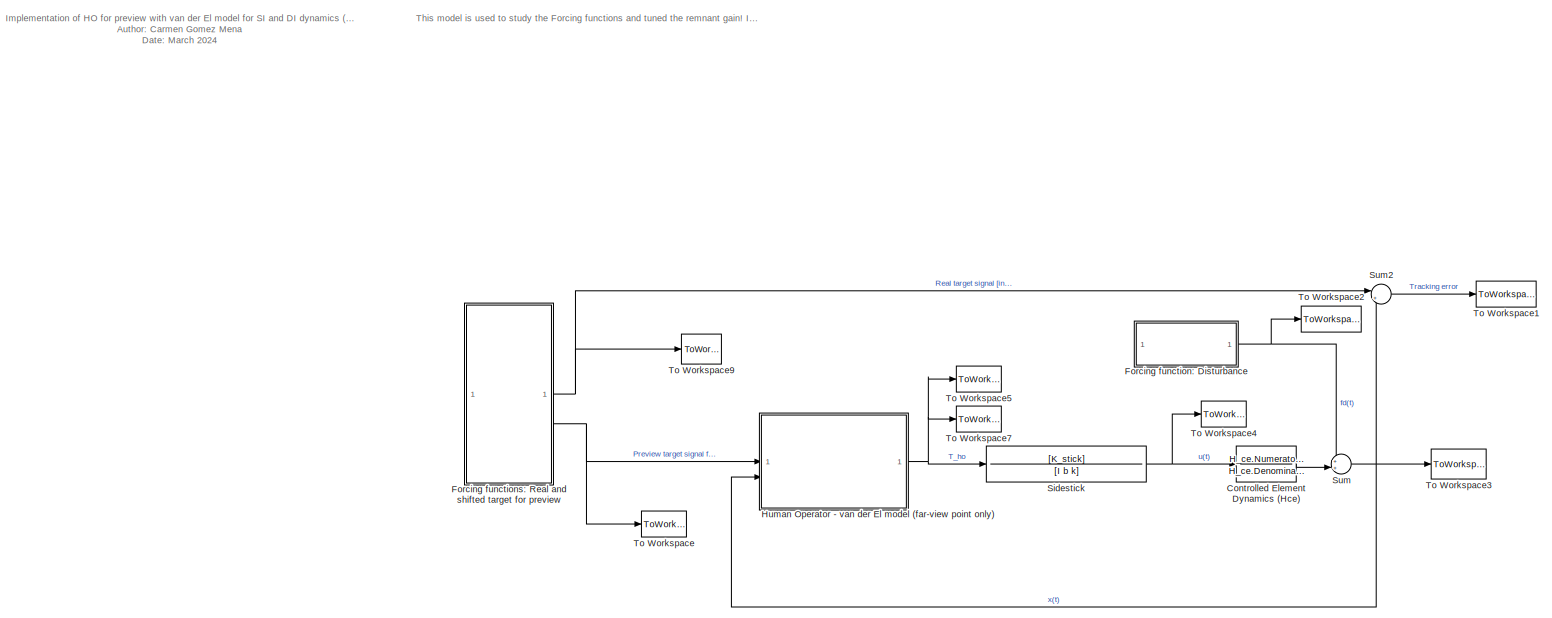
[diagram: root canvas - part 1/1, most of the canvas]
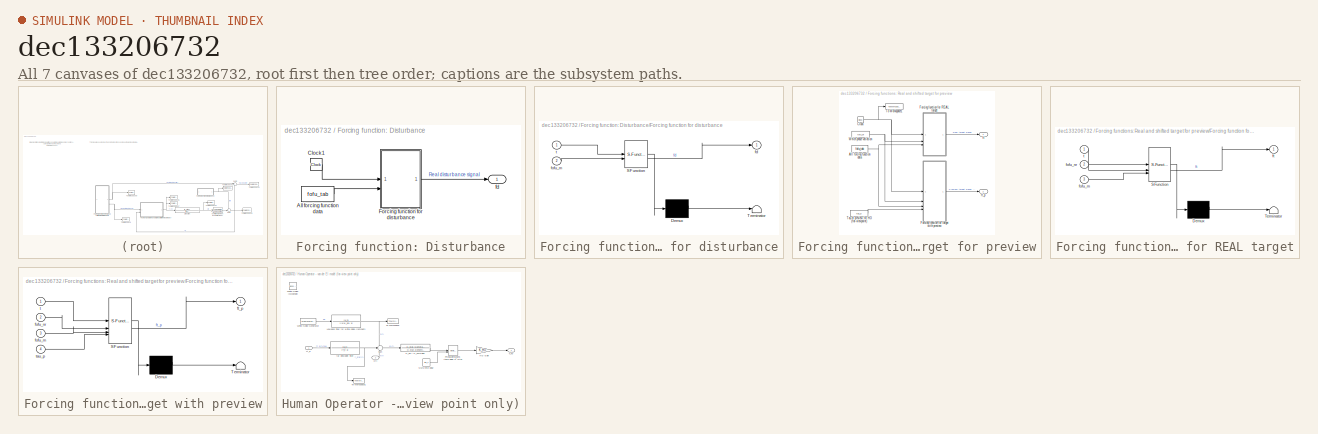
[diagram: thumbnail index - all 7 canvases of the model, root first then tree order]
MODEL slx_dec133206732
KIND model
CONFIG AbsTol = auto
CONFIG EnableMultiTasking = off
CONFIG FixedStep = 0.01
CONFIG MaxStep = auto
CONFIG MinStep = auto
CONFIG RelTol = 1e-3
CONFIG SampleTimeConstraint = Unconstrained
CONFIG SolverName = FixedStepAuto
CONFIG StartTime = 0.0
CONFIG StopTime = 119.99
BLOCK [TransferFcn] Controlled Element Dynamics (Hce)
  Denominator = H_ce.Denominator{1,1}
  Numerator = H_ce.Numerator{1,1}
BLOCK [SubSystem] Forcing function: Disturbance
BLOCK [Constant] Forcing function: Disturbance/All forcing function data
  Value = fofu_tab
  VectorParams1D = off
BLOCK [Clock] Forcing function: Disturbance/Clock1
BLOCK [SubSystem] Forcing function: Disturbance/Forcing function for disturbance
  ErrorFcn = Stateflow.Translate.translate
  PermitHierarchicalResolution = ExplicitOnly
  SFBlockType = MATLAB Function
  TreatAsAtomicUnit = on
BLOCK [Demux] Forcing function: Disturbance/Forcing function for disturbance/ Demux 
  Outputs = 1
BLOCK [S-Function] Forcing function: Disturbance/Forcing function for disturbance/ SFunction 
  EnableBusSupport = on
  FunctionName = sf_sfun
  PortCounts = [2 2]
  SFcnIsStateOwnerBlock = off
  SFunctionDeploymentMode = off
  Tag = Stateflow S-Function 1
BLOCK [Terminator] Forcing function: Disturbance/Forcing function for disturbance/ Terminator 
BLOCK [Outport] Forcing function: Disturbance/Forcing function for disturbance/fd
BLOCK [Inport] Forcing function: Disturbance/Forcing function for disturbance/fofu_m
  Port = 2
BLOCK [Inport] Forcing function: Disturbance/Forcing function for disturbance/t
BLOCK [Outport] Forcing function: Disturbance/fd
BLOCK [SubSystem] Forcing functions: Real and shifted target for preview
BLOCK [Constant] Forcing functions: Real and shifted target for preview/All forcing function data
  Value = fofu_tab
  VectorParams1D = off
BLOCK [Clock] Forcing functions: Real and shifted target for preview/Clock
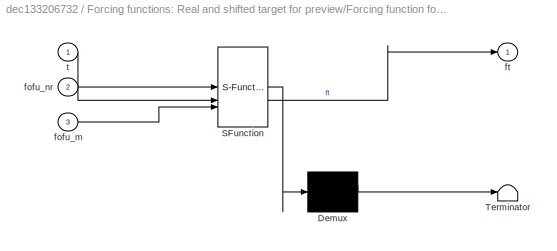
BLOCK [SubSystem] Forcing functions: Real and shifted target for preview/Forcing function for REAL target
  ErrorFcn = Stateflow.Translate.translate
  PermitHierarchicalResolution = ExplicitOnly
  SFBlockType = MATLAB Function
  TreatAsAtomicUnit = on
BLOCK [Demux] Forcing functions: Real and shifted target for preview/Forcing function for REAL target/ Demux 
  Outputs = 1
BLOCK [S-Function] Forcing functions: Real and shifted target for preview/Forcing function for REAL target/ SFunction 
  EnableBusSupport = on
  FunctionName = sf_sfun
  PortCounts = [3 2]
  SFcnIsStateOwnerBlock = off
  SFunctionDeploymentMode = off
  Tag = Stateflow S-Function 5
BLOCK [Terminator] Forcing functions: Real and shifted target for preview/Forcing function for REAL target/ Terminator 
BLOCK [Inport] Forcing functions: Real and shifted target for preview/Forcing function for REAL target/fofu_m
  Port = 3
BLOCK [Inport] Forcing functions: Real and shifted target for preview/Forcing function for REAL target/fofu_nr
  Port = 2
BLOCK [Outport] Forcing functions: Real and shifted target for preview/Forcing function for REAL target/ft
BLOCK [Inport] Forcing functions: Real and shifted target for preview/Forcing function for REAL target/t
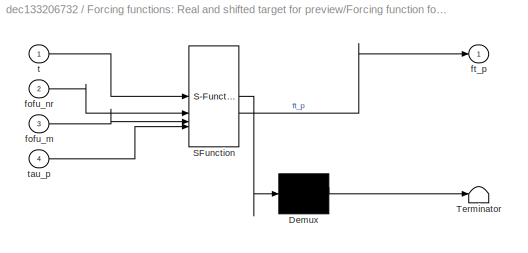
BLOCK [SubSystem] Forcing functions: Real and shifted target for preview/Forcing function for target with preview
  ErrorFcn = Stateflow.Translate.translate
  PermitHierarchicalResolution = ExplicitOnly
  SFBlockType = MATLAB Function
  TreatAsAtomicUnit = on
BLOCK [Demux] Forcing functions: Real and shifted target for preview/Forcing function for target with preview/ Demux 
  Outputs = 1
BLOCK [S-Function] Forcing functions: Real and shifted target for preview/Forcing function for target with preview/ SFunction 
  EnableBusSupport = on
  FunctionName = sf_sfun
  PortCounts = [4 2]
  SFcnIsStateOwnerBlock = off
  SFunctionDeploymentMode = off
  Tag = Stateflow S-Function 6
BLOCK [Terminator] Forcing functions: Real and shifted target for preview/Forcing function for target with preview/ Terminator 
BLOCK [Inport] Forcing functions: Real and shifted target for preview/Forcing function for target with preview/fofu_m
  Port = 3
BLOCK [Inport] Forcing functions: Real and shifted target for preview/Forcing function for target with preview/fofu_nr
  Port = 2
BLOCK [Outport] Forcing functions: Real and shifted target for preview/Forcing function for target with preview/ft_p
BLOCK [Inport] Forcing functions: Real and shifted target for preview/Forcing function for target with preview/t
BLOCK [Inport] Forcing functions: Real and shifted target for preview/Forcing function for target with preview/tau_p
  Port = 4
BLOCK [Constant] Forcing functions: Real and shifted target for preview/Tau of preview for HO (far-viewpoint) 
  Value = tau_p
BLOCK [ToWorkspace] Forcing functions: Real and shifted target for preview/To Workspace1
  FixptAsFi = on
  MaxDataPoints = inf
  SampleTime = -1
  SaveFormat = Timeseries
  VariableName = t
BLOCK [Constant] Forcing functions: Real and shifted target for preview/Which phase variation
  Value = fofu_nr
BLOCK [Outport] Forcing functions: Real and shifted target for preview/ft
BLOCK [Outport] Forcing functions: Real and shifted target for preview/ft_p
  Port = 2
BLOCK [SubSystem] Human Operator - van der El model (far-view point only)
BLOCK [Gain] Human Operator - van der El model (far-view point only)/HO Gain
  Gain = K_HO
BLOCK [TransferFcn] Human Operator - van der El model (far-view point only)/H_oe * H_nms*Kinv 
  Denominator = H_star.Denominator{1,1}
  Numerator = H_star.Numerator{1,1}
BLOCK [TransferFcn] Human Operator - van der El model (far-view point only)/Lowpass filter for white noise (remnant)
  Denominator = [(1/w_bn) 1]
  Numerator = [K_n]
BLOCK [Constant] Human Operator - van der El model (far-view point only)/NMS time delay
  Value = tau_v
BLOCK [VariableTransportDelay] Human Operator - van der El model (far-view point only)/Physical limitations (time delay e^-s*to)
  MaximumDelay = 100
BLOCK [Sum] Human Operator - van der El model (far-view point only)/Sum
  Inputs = +|+-
BLOCK [Outport] Human Operator - van der El model (far-view point only)/T_ho
BLOCK [ToWorkspace] Human Operator - van der El model (far-view point only)/To Workspace
  FixptAsFi = on
  MaxDataPoints = inf
  SampleTime = -1
  SaveFormat = Timeseries
  VariableName = n
BLOCK [ToWorkspace] Human Operator - van der El model (far-view point only)/To Workspace1
  FixptAsFi = on
  MaxDataPoints = inf
  SampleTime = -1
  SaveFormat = Timeseries
  VariableName = f_star
BLOCK [Reference] Human Operator - van der El model (far-view point only)/White Noise (McKenzie)  REF=simulink/Sources/Band-Limited
White Noise
  Commented = on
  SourceBlock = simulink/Sources/Band-Limited\nWhite Noise
  SourceType = Band-Limited White Noise.
BLOCK [FromWorkspace] Human Operator - van der El model (far-view point only)/White Noise Generator
  SampleTime = -1
  VariableName = WN
BLOCK [TransferFcn] Human Operator - van der El model (far-view point only)/far viewpoint filter
  Denominator = [T_lf 1]
  Numerator = [K_f]
BLOCK [Inport] Human Operator - van der El model (far-view point only)/ft_p
BLOCK [Inport] Human Operator - van der El model (far-view point only)/x(t)
  Port = 2
BLOCK [TransferFcn] Sidestick
  Denominator = [I b k]
  Numerator = [K_stick]
BLOCK [Sum] Sum
  Inputs = ++|
BLOCK [Sum] Sum2
  Inputs = |+-
BLOCK [ToWorkspace] To Workspace
  FixptAsFi = on
  MaxDataPoints = inf
  SampleTime = -1
  SaveFormat = Timeseries
  VariableName = ft_p
BLOCK [ToWorkspace] To Workspace1
  FixptAsFi = on
  MaxDataPoints = inf
  SampleTime = -1
  SaveFormat = Timeseries
  VariableName = e
BLOCK [ToWorkspace] To Workspace2
  FixptAsFi = on
  MaxDataPoints = inf
  SampleTime = -1
  SaveFormat = Timeseries
  VariableName = fd
BLOCK [ToWorkspace] To Workspace3
  FixptAsFi = on
  MaxDataPoints = inf
  SampleTime = -1
  SaveFormat = Timeseries
  VariableName = x
BLOCK [ToWorkspace] To Workspace4
  FixptAsFi = on
  MaxDataPoints = inf
  SampleTime = -1
  SaveFormat = Timeseries
  VariableName = u
BLOCK [ToWorkspace] To Workspace5
  FixptAsFi = on
  MaxDataPoints = inf
  SampleTime = -1
  SaveFormat = Timeseries
  VariableName = T_ho
BLOCK [ToWorkspace] To Workspace7
  FixptAsFi = on
  MaxDataPoints = inf
  SampleTime = -1
  SaveFormat = Timeseries
  VariableName = T_tot
BLOCK [ToWorkspace] To Workspace9
  FixptAsFi = on
  MaxDataPoints = inf
  SampleTime = -1
  SaveFormat = Timeseries
  VariableName = ft
ANNOTATION (root): Implementation of HO for preview with van der El model for SI and DI dynamics (see matlab 'init_model_HO.m') Author: Carmen Gomez Mena Date: March 2024
ANNOTATION (root): This model is used to study the Forcing functions and tuned the remnant gain! It has no HSC
LINE Controlled Element Dynamics (Hce):1 -> Sum:2
LINE Forcing function: Disturbance/All forcing function data:1 -> Forcing function: Disturbance/Forcing function for disturbance:2
LINE Forcing function: Disturbance/Clock1:1 -> Forcing function: Disturbance/Forcing function for disturbance:1
LINE Forcing function: Disturbance/Forcing function for disturbance:1 -> Forcing function: Disturbance/fd:1
NET Forcing function: Disturbance:1 -> Sum:1, To Workspace2:1
NET Forcing functions: Real and shifted target for preview/All forcing function data:1 -> Forcing functions: Real and shifted target for preview/Forcing function for REAL target:3, Forcing functions: Real and shifted target for preview/Forcing function for target with preview:3
NET Forcing functions: Real and shifted target for preview/Clock:1 -> Forcing functions: Real and shifted target for preview/Forcing function for REAL target:1, Forcing functions: Real and shifted target for preview/Forcing function for target with preview:1, Forcing functions: Real and shifted target for preview/To Workspace1:1
LINE Forcing functions: Real and shifted target for preview/Forcing function for REAL target:1 -> Forcing functions: Real and shifted target for preview/ft:1
LINE Forcing functions: Real and shifted target for preview/Forcing function for target with preview:1 -> Forcing functions: Real and shifted target for preview/ft_p:1
LINE Forcing functions: Real and shifted target for preview/Tau of preview for HO (far-viewpoint) :1 -> Forcing functions: Real and shifted target for preview/Forcing function for target with preview:4
NET Forcing functions: Real and shifted target for preview/Which phase variation:1 -> Forcing functions: Real and shifted target for preview/Forcing function for REAL target:2, Forcing functions: Real and shifted target for preview/Forcing function for target with preview:2
NET Forcing functions: Real and shifted target for preview:1 -> Sum2:1, To Workspace9:1
NET Forcing functions: Real and shifted target for preview:2 -> Human Operator - van der El model (far-view point only):1, To Workspace:1
LINE Human Operator - van der El model (far-view point only)/HO Gain:1 -> Human Operator - van der El model (far-view point only)/T_ho:1
LINE Human Operator - van der El model (far-view point only)/H_oe * H_nms*Kinv :1 -> Human Operator - van der El model (far-view point only)/Physical limitations (time delay e^-s*to):1
NET Human Operator - van der El model (far-view point only)/Lowpass filter for white noise (remnant):1 -> Human Operator - van der El model (far-view point only)/Sum:1, Human Operator - van der El model (far-view point only)/To Workspace:1
LINE Human Operator - van der El model (far-view point only)/NMS time delay:1 -> Human Operator - van der El model (far-view point only)/Physical limitations (time delay e^-s*to):2
LINE Human Operator - van der El model (far-view point only)/Physical limitations (time delay e^-s*to):1 -> Human Operator - van der El model (far-view point only)/HO Gain:1
LINE Human Operator - van der El model (far-view point only)/Sum:1 -> Human Operator - van der El model (far-view point only)/H_oe * H_nms*Kinv :1
LINE Human Operator - van der El model (far-view point only)/White Noise Generator:1 -> Human Operator - van der El model (far-view point only)/Lowpass filter for white noise (remnant):1
NET Human Operator - van der El model (far-view point only)/far viewpoint filter:1 -> Human Operator - van der El model (far-view point only)/Sum:2, Human Operator - van der El model (far-view point only)/To Workspace1:1
LINE Human Operator - van der El model (far-view point only)/ft_p:1 -> Human Operator - van der El model (far-view point only)/far viewpoint filter:1
LINE Human Operator - van der El model (far-view point only)/x(t):1 -> Human Operator - van der El model (far-view point only)/Sum:3
NET Human Operator - van der El model (far-view point only):1 -> Sidestick:1, To Workspace5:1, To Workspace7:1
NET Sidestick:1 -> Controlled Element Dynamics (Hce):1, To Workspace4:1
LINE Sum2:1 -> To Workspace1:1
NET Sum:1 -> Human Operator - van der El model (far-view point only):2, Sum2:2, To Workspace3:1
note: NET lines group one-source signal fan-out (src -> all destinations, sorted); 1:1 wires keep LINE
CHART Forcing function:
Disturbance/Forcing function 
for disturbance states=1 transitions=1
  STATE_LABEL 'eML_blk_kernel()'
  STATE_LABEL 'SCRIPT:\nfunction fd = fcn(t, fofu_m)\n\nfd = 0;  %initialise at 0\nbase_freq = 2*pi/120; \n\nfor i=1:10 %for each of the 10 sinusoidals in the fofu data\n    Ad = fofu_m(i,9); %amplitude\n    % omega_d = fofu_m(i,10); %frequency\n    omega_d = base_freq*fofu_m(i,8); %frequency = k*base\n    phi_d = fofu_m(i,11); %phase\n    \n    %compute sinusoidal (no time shift)\n    fd_i = Ad * sin(omega_d * (t) + phi_d);...<+78ch>'
CHART Forcing functions:
Real and shifted target for preview/Forcing function for REAL target states=1 transitions=1
  STATE_LABEL 'eML_blk_kernel()'
  STATE_LABEL 'SCRIPT:\nfunction ft  = fcn(t, fofu_nr, fofu_m)\n\nft = 0; %initialise at 0\nbase_freq = 2*pi/120; \n\nfor i=1:10 %for each of the 10 sinusoidals in the fofu data\n    \n    At = fofu_m(i,3); %amplitude\n    % omega_t = fofu_m(i,4); % frequency\n    omega_t = base_freq*fofu_m(i,2); % frequency = k*base\n    phi_t = fofu_m(i,4+fofu_nr); %phase (depends on fofu_nr which variation)\n\n    %compute sinusoidal (wit...<+158ch>'
CHART Forcing functions:
Real and shifted target for preview/Forcing function for target
 with preview states=1 transitions=1
  STATE_LABEL 'eML_blk_kernel()'
  STATE_LABEL 'SCRIPT:\nfunction ft_p  = fcn(t, fofu_nr, fofu_m, tau_p)\n\nft_p = 0; %initialise at 0\nbase_freq = 2*pi/120; \n\nfor i=1:10 %for each of the 10 sinusoidals in the fofu data\n    \n    At = fofu_m(i,3); %amplitude\n    % omega_t = fofu_m(i,4); % frequency\n    omega_t = base_freq*fofu_m(i,2); % frequency = k*base\n    phi_t = fofu_m(i,4+fofu_nr); %phase (depends on fofu_nr which variation)\n\n    %compute sinu...<+179ch>'
CHART  states=0 transitions=0
CHART  states=0 transitions=0
CHART  states=0 transitions=0
